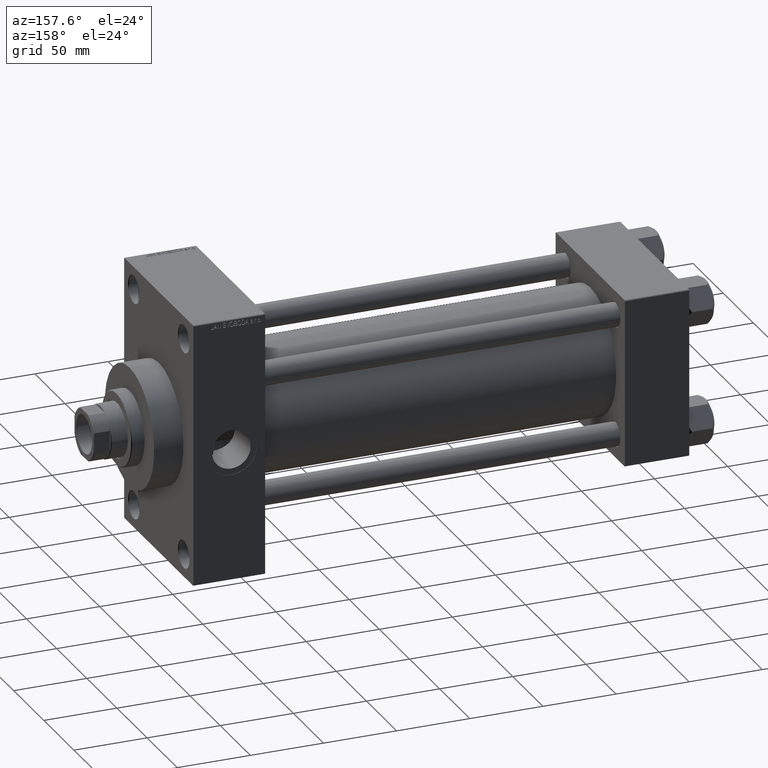
[diagram: clean part render]
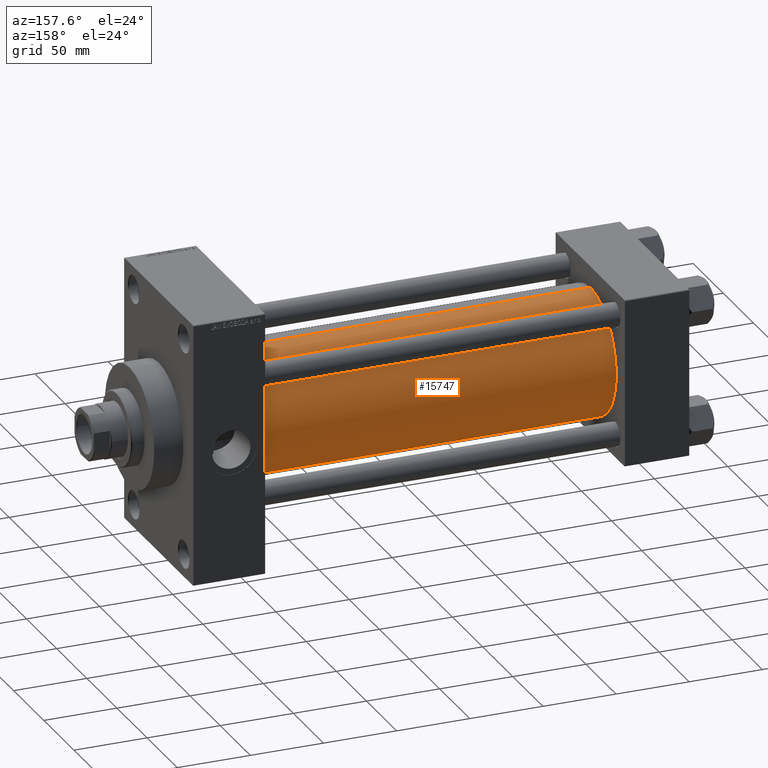
[diagram: same view with one face highlighted and labeled with its STEP entity id]
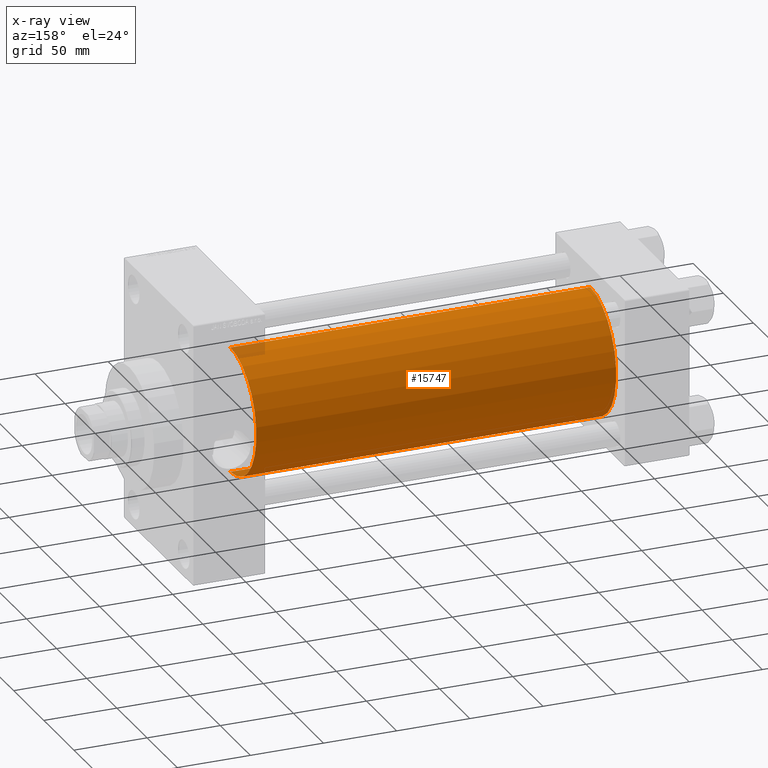
[diagram: x-ray of the same camera — body ghosted, the highlighted face saturated]
A machine part, auxiliary view. The second image highlights one B-rep face of the part: STEP entity #15747.
The next image is the same camera in x-ray: the body ghosted, the highlighted face saturated — about 1% of this face is hidden behind the body in this view.
In plain terms, the highlighted cylindrical surface (partial cylindrical patch) has radius 43 mm, axis along (-1, -0, -0).
Its self-contained STEP definition (entity closure, byte-faithful):
#1355 = DIRECTION ( 'NONE',  ( -1.000000000000000000, -0.000000000000000000, -0.000000000000000000 ) ) ;
#2025 = CARTESIAN_POINT ( 'NONE',  ( 290.0000000000000000, -2.602085213965210642E-15, 43.00000000000000000 ) ) ;
#3656 = CARTESIAN_POINT ( 'NONE',  ( 290.0000000000000000, -2.602085213965210642E-15, 43.00000000000000000 ) ) ;
#4111 = CARTESIAN_POINT ( 'NONE',  ( 43.99999999999998579, 2.663896022368408223E-15, -43.00000000000000000 ) ) ;
#4999 = AXIS2_PLACEMENT_3D ( 'NONE', #44836, #37828, #19481 ) ;
#5501 = DIRECTION ( 'NONE',  ( 0.000000000000000000, 0.000000000000000000, -1.000000000000000000 ) ) ;
#6069 = CARTESIAN_POINT ( 'NONE',  ( 290.0000000000000000, 2.663896022368408223E-15, -43.00000000000000000 ) ) ;
#6458 = CIRCLE ( 'NONE', #11857, 43.00000000000000000 ) ;
#9472 = EDGE_CURVE ( 'NONE', #35373, #44748, #6458, .T. ) ;
#9981 = EDGE_LOOP ( 'NONE', ( #41436, #19281, #38828, #34441 ) ) ;
#11857 = AXIS2_PLACEMENT_3D ( 'NONE', #23566, #38781, #5501 ) ;
#14731 = LINE ( 'NONE', #3656, #38141 ) ;
#15747 = ADVANCED_FACE ( 'NONE', ( #45071 ), #41455, .T. ) ;
#17675 = CARTESIAN_POINT ( 'NONE',  ( 43.99999999999998579, -2.602085213965210642E-15, 0.000000000000000000 ) ) ;
#18347 = DIRECTION ( 'NONE',  ( -1.000000000000000000, -0.000000000000000000, -0.000000000000000000 ) ) ;
#18725 = LINE ( 'NONE', #44534, #27877 ) ;
#19281 = ORIENTED_EDGE ( 'NONE', *, *, #42843, .T. ) ;
#19481 = DIRECTION ( 'NONE',  ( 0.000000000000000000, 0.000000000000000000, 1.000000000000000000 ) ) ;
#20521 = VERTEX_POINT ( 'NONE', #29047 ) ;
#22495 = VERTEX_POINT ( 'NONE', #4111 ) ;
#23288 = EDGE_CURVE ( 'NONE', #44748, #20521, #14731, .T. ) ;
#23566 = CARTESIAN_POINT ( 'NONE',  ( 290.0000000000000000, -2.602085213965210642E-15, 0.000000000000000000 ) ) ;
#27877 = VECTOR ( 'NONE', #1355, 1000.000000000000000 ) ;
#29047 = CARTESIAN_POINT ( 'NONE',  ( 43.99999999999998579, -2.602085213965210642E-15, 43.00000000000000000 ) ) ;
#32339 = CIRCLE ( 'NONE', #39293, 43.00000000000000000 ) ;
#34441 = ORIENTED_EDGE ( 'NONE', *, *, #23288, .F. ) ;
#35373 = VERTEX_POINT ( 'NONE', #6069 ) ;
#36255 = DIRECTION ( 'NONE',  ( 1.000000000000000000, -0.000000000000000000, 0.000000000000000000 ) ) ;
#37828 = DIRECTION ( 'NONE',  ( -1.000000000000000000, -0.000000000000000000, -0.000000000000000000 ) ) ;
#38069 = EDGE_CURVE ( 'NONE', #22495, #20521, #32339, .T. ) ;
#38141 = VECTOR ( 'NONE', #18347, 1000.000000000000000 ) ;
#38781 = DIRECTION ( 'NONE',  ( 1.000000000000000000, 0.000000000000000000, 0.000000000000000000 ) ) ;
#38828 = ORIENTED_EDGE ( 'NONE', *, *, #38069, .T. ) ;
#39293 = AXIS2_PLACEMENT_3D ( 'NONE', #17675, #36255, #46370 ) ;
#41436 = ORIENTED_EDGE ( 'NONE', *, *, #9472, .F. ) ;
#41455 = CYLINDRICAL_SURFACE ( 'NONE', #4999, 43.00000000000000000 ) ;
#42843 = EDGE_CURVE ( 'NONE', #35373, #22495, #18725, .T. ) ;
#44534 = CARTESIAN_POINT ( 'NONE',  ( 290.0000000000000000, 2.663896022368408223E-15, -43.00000000000000000 ) ) ;
#44748 = VERTEX_POINT ( 'NONE', #2025 ) ;
#44836 = CARTESIAN_POINT ( 'NONE',  ( 290.0000000000000000, -2.602085213965210642E-15, 0.000000000000000000 ) ) ;
#45071 = FACE_OUTER_BOUND ( 'NONE', #9981, .T. ) ;
#46370 = DIRECTION ( 'NONE',  ( 0.000000000000000000, 0.000000000000000000, 1.000000000000000000 ) ) ;